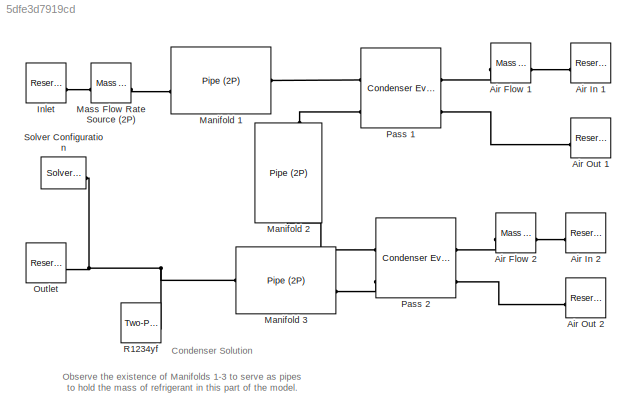
MODEL slx_5dfe3d7919cd
KIND model
CONFIG AbsTol = 1e-3
CONFIG EnableMultiTasking = off
CONFIG FixedStep = auto
CONFIG MaxStep = auto
CONFIG MinStep = auto
CONFIG RelTol = 1e-3
CONFIG SampleTimeConstraint = Unconstrained
CONFIG SolverName = VariableStepAuto
CONFIG StartTime = 0.0
CONFIG StopTime = 10
BLOCK [Reference] Air Flow 1  REF=fl_lib/Moist Air/Sources/Mass Flow Rate
Source (MA)
  SourceBlock = fl_lib/Moist Air/Sources/Mass Flow Rate\nSource (MA)
  SourceType = Mass Flow Rate\nSource (MA)
BLOCK [Reference] Air Flow 2  REF=fl_lib/Moist Air/Sources/Mass Flow Rate
Source (MA)
  SourceBlock = fl_lib/Moist Air/Sources/Mass Flow Rate\nSource (MA)
  SourceType = Mass Flow Rate\nSource (MA)
BLOCK [Reference] Air In 1  REF=fl_lib/Moist Air/Elements/Reservoir (MA)
  SourceBlock = fl_lib/Moist Air/Elements/Reservoir (MA)
  SourceType = Reservoir (MA)
BLOCK [Reference] Air In 2  REF=fl_lib/Moist Air/Elements/Reservoir (MA)
  SourceBlock = fl_lib/Moist Air/Elements/Reservoir (MA)
  SourceType = Reservoir (MA)
BLOCK [Reference] Air Out 1  REF=fl_lib/Moist Air/Elements/Reservoir (MA)
  SourceBlock = fl_lib/Moist Air/Elements/Reservoir (MA)
  SourceType = Reservoir (MA)
BLOCK [Reference] Air Out 2  REF=fl_lib/Moist Air/Elements/Reservoir (MA)
  SourceBlock = fl_lib/Moist Air/Elements/Reservoir (MA)
  SourceType = Reservoir (MA)
BLOCK [Reference] Inlet  REF=fl_lib/Two-Phase Fluid/Elements/Reservoir (2P)
  SourceBlock = fl_lib/Two-Phase Fluid/Elements/Reservoir (2P)
  SourceType = Reservoir (2P)
BLOCK [Reference] Manifold 1  REF=fl_lib/Two-Phase Fluid/Elements/Pipe (2P)
  SourceBlock = fl_lib/Two-Phase Fluid/Elements/Pipe (2P)
  SourceType = Pipe (2P)
BLOCK [Reference] Manifold 2  REF=fl_lib/Two-Phase Fluid/Elements/Pipe (2P)
  NameLocation = left
  SourceBlock = fl_lib/Two-Phase Fluid/Elements/Pipe (2P)
  SourceType = Pipe (2P)
BLOCK [Reference] Manifold 3  REF=fl_lib/Two-Phase Fluid/Elements/Pipe (2P)
  SourceBlock = fl_lib/Two-Phase Fluid/Elements/Pipe (2P)
  SourceType = Pipe (2P)
BLOCK [Reference] Mass Flow Rate Source (2P)  REF=fl_lib/Two-Phase Fluid/Sources/Mass Flow Rate
Source (2P)
  SourceBlock = fl_lib/Two-Phase Fluid/Sources/Mass Flow Rate\nSource (2P)
  SourceType = Mass Flow Rate\nSource (2P)
BLOCK [Reference] Outlet  REF=fl_lib/Two-Phase Fluid/Elements/Reservoir (2P)
  SourceBlock = fl_lib/Two-Phase Fluid/Elements/Reservoir (2P)
  SourceType = Reservoir (2P)
BLOCK [Reference] Pass 1  REF=SimscapeFluids_lib/Fluid Network
Interfaces/Heat Exchangers/Condenser Evaporator
(2P-MA)
  SourceBlock = SimscapeFluids_lib/Fluid Network\nInterfaces/Heat Exchangers/Condenser Evaporator\n(2P-MA)
  SourceType = Condenser Evaporator\n(2P-MA)
BLOCK [Reference] Pass 2  REF=SimscapeFluids_lib/Fluid Network
Interfaces/Heat Exchangers/Condenser Evaporator
(2P-MA)
  SourceBlock = SimscapeFluids_lib/Fluid Network\nInterfaces/Heat Exchangers/Condenser Evaporator\n(2P-MA)
  SourceType = Condenser Evaporator\n(2P-MA)
BLOCK [Reference] R1234yf  REF=SimscapeFluids_lib/Two-Phase Fluid/Utilities/Two-Phase Fluid
Predefined
Properties (2P)
  SourceBlock = SimscapeFluids_lib/Two-Phase Fluid/Utilities/Two-Phase Fluid\nPredefined\nProperties (2P)
  SourceType = Two-Phase Fluid\nPredefined\nProperties (2P)
BLOCK [Reference] Solver Configuration  REF=nesl_utility/Solver
Configuration
  SourceBlock = nesl_utility/Solver\nConfiguration
  SourceType = Solver\nConfiguration
ANNOTATION (root): Condenser Solution
ANNOTATION (root): Observe the existence of Manifolds 1-3 to serve as pipes to hold the mass of refrigerant in this part of the model.
PLINE Air Flow 1:LConn1 -- Air In 1:LConn1
PLINE Air Flow 1:RConn1 -- Pass 1:RConn1
PLINE Air Flow 2:LConn1 -- Air In 2:LConn1
PLINE Air Flow 2:RConn1 -- Pass 2:RConn1
PLINE Air Out 1:LConn1 -- Pass 1:RConn3
PLINE Air Out 2:LConn1 -- Pass 2:RConn3
PLINE Inlet:LConn1 -- Mass Flow Rate Source (2P):LConn1
PLINE Manifold 1:LConn1 -- Pass 1:LConn1
PLINE Manifold 1:RConn1 -- Mass Flow Rate Source (2P):RConn1
PLINE Manifold 2:LConn1 -- Pass 2:LConn1
PLINE Manifold 2:RConn1 -- Pass 1:LConn3
PNET net1: Manifold 3:LConn1 -- Outlet:LConn1 -- R1234yf:RConn1 -- Solver Configuration:RConn1
PLINE Manifold 3:RConn1 -- Pass 2:LConn3
note: PNET lines group multi-terminal physical nets as a canonical sorted terminal list (undirected conserving connections); 2-terminal nets keep the pairwise PLINE form
